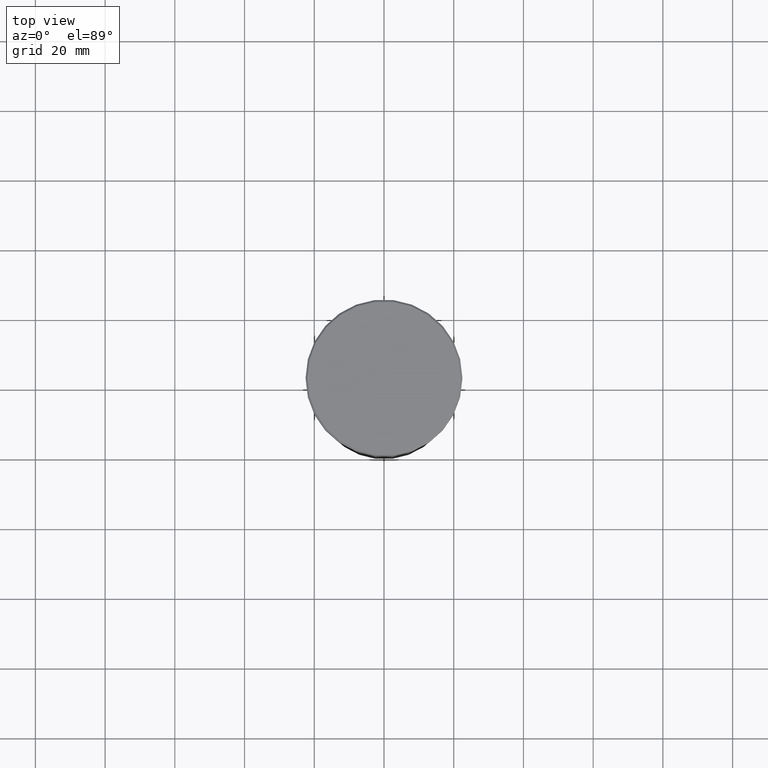
[diagram: clean part render]
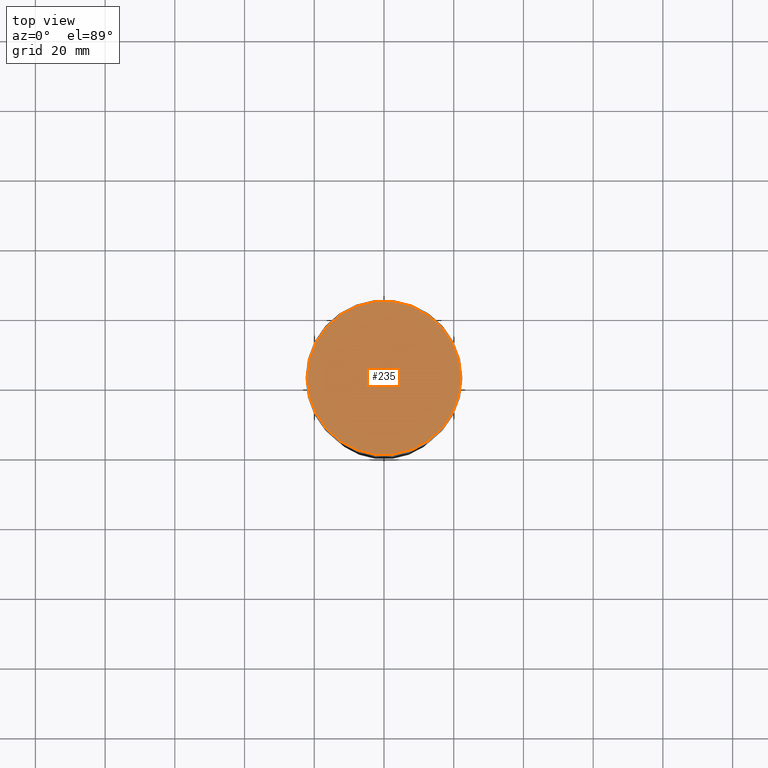
[diagram: same view with one face highlighted and labeled with its STEP entity id]
A machine part, top view. The second image highlights one B-rep face of the part: STEP entity #235.
In plain terms, the highlighted planar face has unit normal (0, -0, 1).
Its self-contained STEP definition (entity closure, byte-faithful):
#16 = DIRECTION ( 'NONE',  ( 1.000000000000000000, 0.000000000000000000, 0.000000000000000000 ) ) ;
#23 = EDGE_CURVE ( 'NONE', #445, #261, #351, .T. ) ;
#132 = ORIENTED_EDGE ( 'NONE', *, *, #169, .T. ) ;
#149 = CIRCLE ( 'NONE', #491, 22.00000000000000711 ) ;
#152 = DIRECTION ( 'NONE',  ( -0.000000000000000000, -0.000000000000000000, 1.000000000000000000 ) ) ;
#169 = EDGE_CURVE ( 'NONE', #261, #445, #149, .T. ) ;
#183 = DIRECTION ( 'NONE',  ( 1.000000000000000000, 0.000000000000000000, 0.000000000000000000 ) ) ;
#197 = DIRECTION ( 'NONE',  ( 1.000000000000000000, 0.000000000000000000, 0.000000000000000000 ) ) ;
#211 = EDGE_LOOP ( 'NONE', ( #268, #132 ) ) ;
#235 = ADVANCED_FACE ( 'NONE', ( #501 ), #409, .T. ) ;
#261 = VERTEX_POINT ( 'NONE', #540 ) ;
#268 = ORIENTED_EDGE ( 'NONE', *, *, #23, .T. ) ;
#275 = DIRECTION ( 'NONE',  ( 0.000000000000000000, -0.000000000000000000, 1.000000000000000000 ) ) ;
#278 = CARTESIAN_POINT ( 'NONE',  ( -22.00000000000000711, 0.000000000000000000, 0.000000000000000000 ) ) ;
#351 = CIRCLE ( 'NONE', #507, 22.00000000000000711 ) ;
#409 = PLANE ( 'NONE',  #525 ) ;
#413 = CARTESIAN_POINT ( 'NONE',  ( 0.000000000000000000, 0.000000000000000000, 0.000000000000000000 ) ) ;
#426 = CARTESIAN_POINT ( 'NONE',  ( 0.000000000000000000, 0.000000000000000000, 0.000000000000000000 ) ) ;
#445 = VERTEX_POINT ( 'NONE', #278 ) ;
#491 = AXIS2_PLACEMENT_3D ( 'NONE', #578, #537, #16 ) ;
#501 = FACE_OUTER_BOUND ( 'NONE', #211, .T. ) ;
#507 = AXIS2_PLACEMENT_3D ( 'NONE', #426, #152, #197 ) ;
#525 = AXIS2_PLACEMENT_3D ( 'NONE', #413, #275, #183 ) ;
#537 = DIRECTION ( 'NONE',  ( -0.000000000000000000, -0.000000000000000000, 1.000000000000000000 ) ) ;
#540 = CARTESIAN_POINT ( 'NONE',  ( 22.00000000000000711, 2.724839128102860991E-15, 0.000000000000000000 ) ) ;
#578 = CARTESIAN_POINT ( 'NONE',  ( 0.000000000000000000, 0.000000000000000000, 0.000000000000000000 ) ) ;